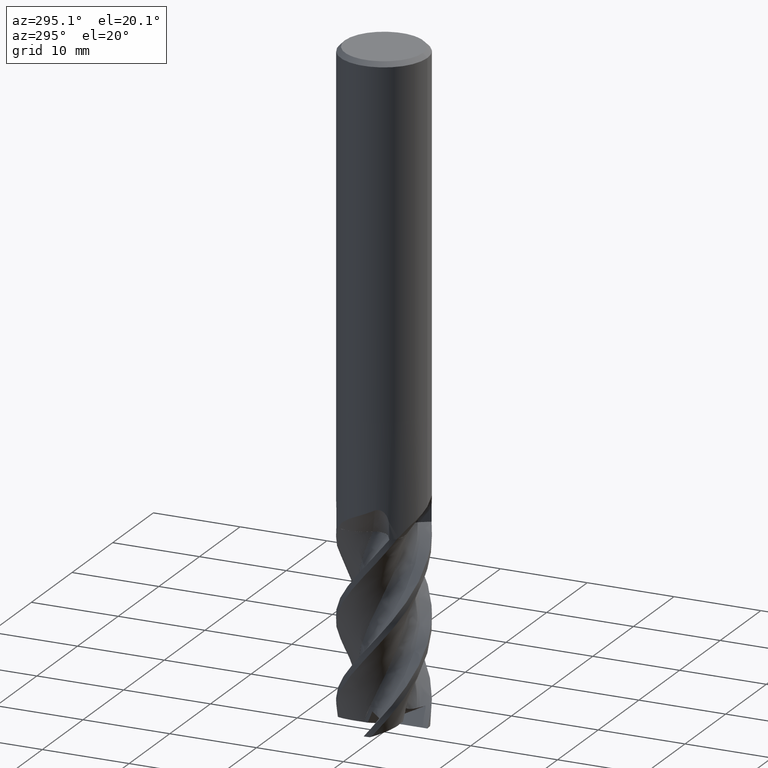
[diagram: clean part render]
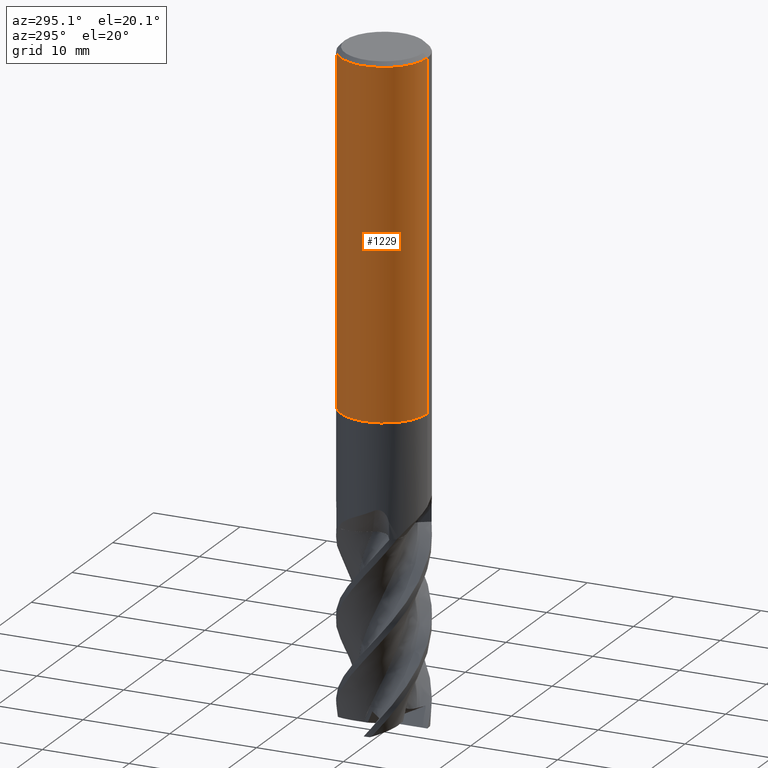
[diagram: same view with one face highlighted and labeled with its STEP entity id]
A machine part, auxiliary view. The second image highlights one B-rep face of the part: STEP entity #1229.
In plain terms, the highlighted cylindrical surface (partial cylindrical patch) has radius 5 mm, axis along (-0, -0, 1).
Its self-contained STEP definition (entity closure, byte-faithful):
#547=VERTEX_POINT('',#1537);
#561=VERTEX_POINT('',#1552);
#569=EDGE_CURVE('',#547,#561,#1560,.T.);
#573=VERTEX_POINT('',#1564);
#691=VERTEX_POINT('',#1692);
#721=VERTEX_POINT('',#1723);
#749=EDGE_CURVE('',#1273,#825,#1753,.T.);
#757=VERTEX_POINT('',#1762);
#773=EDGE_CURVE('',#1273,#573,#1779,.T.);
#825=VERTEX_POINT('',#1836);
#835=VERTEX_POINT('',#1848);
#933=VERTEX_POINT('',#1957);
#937=EDGE_CURVE('',#573,#933,#1961,.T.);
#961=VERTEX_POINT('',#1988);
#991=EDGE_CURVE('',#1001,#721,#2020,.T.);
#1001=VERTEX_POINT('',#2031);
#1003=EDGE_CURVE('',#561,#757,#2033,.T.);
#1073=EDGE_CURVE('',#757,#547,#2109,.T.);
#1139=EDGE_CURVE('',#721,#961,#2181,.T.);
#1185=EDGE_CURVE('',#691,#1001,#2231,.T.);
#1229=ADVANCED_FACE('',(#2277,#2278,#2279),#2280,.T.);
#1273=VERTEX_POINT('',#2329);
#1299=EDGE_CURVE('',#933,#825,#2356,.T.);
#1411=EDGE_CURVE('',#835,#691,#2480,.T.);
#1425=EDGE_CURVE('',#961,#835,#2494,.T.);
#1537=CARTESIAN_POINT('',(-0.0223606238740609,4.99995,-33.3681235437959));
#1552=CARTESIAN_POINT('',(-0.022360623874032,4.99995,-31.9143174982865));
#1560=LINE('',#2671,#2672);
#1564=CARTESIAN_POINT('',(6.12303176911189E-016,-5.0,-0.5));
#1692=CARTESIAN_POINT('',(-0.540415645104002,4.97070929853344,-30.7148525727368));
#1723=CARTESIAN_POINT('',(-1.15007005908306,4.86593658602336,-30.3524544749723));
#1753=CIRCLE('',#3961,5.0);
#1762=CARTESIAN_POINT('',(-1.48559931323941,4.77420094680802,-32.6357185223062));
#1779=LINE('',#3997,#3998);
#1836=CARTESIAN_POINT('',(0.0,5.0,-40.0));
#1848=CARTESIAN_POINT('',(-0.0223606238739375,4.99995,-31.13172664287));
#1957=CARTESIAN_POINT('',(0.0,5.0,-0.5));
#1961=CIRCLE('',#5179,5.0);
#1988=CARTESIAN_POINT('',(-0.0223606238741619,4.99995,-31.6638252748461));
#2020=CIRCLE('',#5713,5.0);
#2031=CARTESIAN_POINT('',(-0.624809296542345,4.9608077308997,-30.3524544749723));
#2033=ELLIPSE('',#5731,5.5746421602143,5.0);
#2109=B_SPLINE_CURVE_WITH_KNOTS('',3,(#6265,#6266,#6267,#6268,#6269,#6270,#6271,#6272,#6273,#6274,#6275,#6276,#6277,#6278,#6279,#6280),.UNSPECIFIED.,.F.,.F.,(4,2,2,2,2,2,2,4),(6.54109252178393,6.88549734634811,7.22994914101815,7.57440093568819,7.91885273035823,8.26330452502827,8.60711872297111,8.95093292091395),.UNSPECIFIED.);
#2181=B_SPLINE_CURVE_WITH_KNOTS('',3,(#7166,#7167,#7168,#7169,#7170,#7171,#7172,#7173,#7174,#7175,#7176,#7177,#7178,#7179),.UNSPECIFIED.,.F.,.F.,(4,2,2,2,2,2,4),(3.48518623586871,3.98268614979816,4.48018606372761,4.97768597765706,5.47391781680518,5.97014965595331,6.46980642683155),.UNSPECIFIED.);
#2231=B_SPLINE_CURVE_WITH_KNOTS('',3,(#7277,#7278,#7279,#7280,#7281,#7282,#7283,#7284,#7285,#7286,#7287,#7288,#7289,#7290,#7291,#7292,#7293,#7294,#7295,#7296,#7297,#7298,#7299,#7300,#7301,#7302,#7303),.UNSPECIFIED.,.F.,.F.,(4,2,3,2,2,2,2,2,2,2,2,2,4),(-0.603000499753014,-0.301500249876507,0.0,0.301500249876507,0.603000499753014,0.905281064529937,1.20756162930686,1.50852806620539,1.80949450310392,2.11084856779286,2.41220263248181,2.71355669717075,3.0149107618597),.UNSPECIFIED.);
#2277=FACE_OUTER_BOUND('',#7501,.T.);
#2278=FACE_BOUND('',#7502,.T.);
#2279=FACE_BOUND('',#7503,.T.);
#2280=CYLINDRICAL_SURFACE('',#7504,5.0);
#2329=CARTESIAN_POINT('',(6.12303176911189E-016,-5.0,-40.0));
#2356=LINE('',#7797,#7798);
#2480=B_SPLINE_CURVE_WITH_KNOTS('',3,(#9172,#9173,#9174,#9175,#9176,#9177,#9178,#9179,#9180,#9181,#9182,#9183,#9184,#9185,#9186,#9187,#9188,#9189,#9190,#9191,#9192,#9193,#9194,#9195,#9196,#9197,#9198),.UNSPECIFIED.,.F.,.F.,(4,2,3,2,2,2,2,2,2,2,2,2,4),(-0.603000499753014,-0.301500249876507,0.0,0.301500249876507,0.603000499753014,0.905281064529937,1.20756162930686,1.50852806620539,1.80949450310392,2.11084856779286,2.41220263248181,2.71355669717075,3.0149107618597),.UNSPECIFIED.);
#2494=LINE('',#9215,#9216);
#2671=CARTESIAN_POINT('',(-0.022360623874032,4.99995,-31.6841234986975));
#2672=VECTOR('',#10617,1.0);
#3961=AXIS2_PLACEMENT_3D('',#10835,#10836,#10837);
#3997=CARTESIAN_POINT('',(6.12303176911189E-016,-5.0,-20.25));
#3998=VECTOR('',#10870,1.0);
#5179=AXIS2_PLACEMENT_3D('',#11067,#11068,#11069);
#5713=AXIS2_PLACEMENT_3D('',#11143,#11144,#11145);
#5731=AXIS2_PLACEMENT_3D('',#11158,#11159,#11160);
#6265=CARTESIAN_POINT('',(-1.53222492214191,4.75944185676926,-32.5697494965023));
#6266=CARTESIAN_POINT('',(-1.46602953829672,4.78075238428633,-32.6679882363906));
#6267=CARTESIAN_POINT('',(-1.39109970116435,4.80329709406389,-32.7580874561206));
#6268=CARTESIAN_POINT('',(-1.23168862547006,4.84662422135611,-32.9175731791814));
#6269=CARTESIAN_POINT('',(-1.14158518892163,4.86897132411838,-32.9925797495797));
#6270=CARTESIAN_POINT('',(-0.945026646968974,4.91090858548794,-33.1251357845015));
#6271=CARTESIAN_POINT('',(-0.838570688681342,4.93046269590435,-33.1826953863995));
#6272=CARTESIAN_POINT('',(-0.61590226023856,4.96319731649047,-33.2754300728182));
#6273=CARTESIAN_POINT('',(-0.499494461180503,4.97638094124785,-33.3106783119967));
#6274=CARTESIAN_POINT('',(-0.264709162168673,4.99437594186088,-33.3570434159942));
#6275=CARTESIAN_POINT('',(-0.14632819076809,4.99917703876382,-33.3681466897615));
#6276=CARTESIAN_POINT('',(0.0830892500263585,5.00062300331422,-33.3681466897615));
#6277=CARTESIAN_POINT('',(0.201310993793807,4.99732781836603,-33.3570837397249));
#6278=CARTESIAN_POINT('',(0.435877527752523,4.98235107366299,-33.310827881912));
#6279=CARTESIAN_POINT('',(0.552225516433843,4.9706798792064,-33.2756478393409));
#6280=CARTESIAN_POINT('',(0.663533112758594,4.95577681178974,-33.2293444974826));
#7166=CARTESIAN_POINT('',(-1.04955253534846,4.8886030188126,-29.8584179657786));
#7167=CARTESIAN_POINT('',(-1.11682369959179,4.87416032633665,-30.0203733859967));
#7168=CARTESIAN_POINT('',(-1.15010962979076,4.86592723326835,-30.196820692817));
#7169=CARTESIAN_POINT('',(-1.15010962979076,4.86592723326835,-30.5284873021034));
#7170=CARTESIAN_POINT('',(-1.11682369959179,4.87416032633665,-30.7049346089237));
#7171=CARTESIAN_POINT('',(-0.982281371105157,4.90304571128857,-31.0288454493599));
#7172=CARTESIAN_POINT('',(-0.881055810925627,4.92317724624631,-31.176368018941));
#7173=CARTESIAN_POINT('',(-0.648047522433528,4.95922342800457,-31.409027304771));
#7174=CARTESIAN_POINT('',(-0.500628335087547,4.97751559580468,-31.5099688822119));
#7175=CARTESIAN_POINT('',(-0.177088634589299,4.99949295931905,-31.6440504938811));
#7176=CARTESIAN_POINT('',(-0.000925323496746372,5.00273523331845,-31.6771594848892));
#7177=CARTESIAN_POINT('',(0.330858065435099,4.99182056917462,-31.6771594848892));
#7178=CARTESIAN_POINT('',(0.50755156831376,4.97685501334451,-31.6436400648554));
#7179=CARTESIAN_POINT('',(0.669464692169009,4.95497901367292,-31.5762561352577));
#7277=CARTESIAN_POINT('',(0.739090223917679,4.94507286507583,-29.793059301492));
#7278=CARTESIAN_POINT('',(0.809714115490718,4.93451742347551,-29.8637778657692));
#7279=CARTESIAN_POINT('',(0.871053529322123,4.92371633214347,-29.9533606839152));
#7280=CARTESIAN_POINT('',(0.9525321460151,4.90860461891915,-30.1499499949859));
#7281=CARTESIAN_POINT('',(0.972658030198616,4.90448125251694,-30.256976356893));
#7282=CARTESIAN_POINT('',(0.972658030198616,4.90448125251694,-30.3574764401852));
#7283=CARTESIAN_POINT('',(0.972658030198616,4.90448125251694,-30.4579765234773));
#7284=CARTESIAN_POINT('',(0.9525321460151,4.90860461891915,-30.5650028853844));
#7285=CARTESIAN_POINT('',(0.871053529322123,4.92371633214347,-30.7615921964552));
#7286=CARTESIAN_POINT('',(0.809714115490719,4.93451742347551,-30.8511750146011));
#7287=CARTESIAN_POINT('',(0.668283550158084,4.95565562528821,-30.9927951703653));
#7288=CARTESIAN_POINT('',(0.57860485054302,4.96739281956991,-31.0543047454339));
#7289=CARTESIAN_POINT('',(0.381781703919566,4.98638323105567,-31.1360227915518));
#7290=CARTESIAN_POINT('',(0.274615689105447,4.9934696192963,-31.156217997343));
#7291=CARTESIAN_POINT('',(0.0736550345331755,5.00046392535656,-31.156217997343));
#7292=CARTESIAN_POINT('',(-0.0333084125996869,5.00085705242446,-31.1361796240269));
#7293=CARTESIAN_POINT('',(-0.230021364744812,4.99567521773621,-31.0547246193692));
#7294=CARTESIAN_POINT('',(-0.319777384248839,4.99026997289342,-30.9933130123696));
#7295=CARTESIAN_POINT('',(-0.461588668494992,4.9791566455235,-30.8516230263792));
#7296=CARTESIAN_POINT('',(-0.523099346955725,4.97273104303287,-30.7618392087191));
#7297=CARTESIAN_POINT('',(-0.604720484215197,4.96346654097369,-30.5649969787532));
#7298=CARTESIAN_POINT('',(-0.624825084116949,4.96080574244328,-30.4579277950815));
#7299=CARTESIAN_POINT('',(-0.624825084116949,4.96080574244328,-30.2570250852889));
#7300=CARTESIAN_POINT('',(-0.604720484215199,4.96346654097369,-30.1499559016171));
#7301=CARTESIAN_POINT('',(-0.523099346955731,4.97273104303287,-29.9531136716512));
#7302=CARTESIAN_POINT('',(-0.461588668494991,4.9791566455235,-29.8633298539912));
#7303=CARTESIAN_POINT('',(-0.390637394524234,4.98471688524026,-29.7924392681795));
#7501=EDGE_LOOP('',(#11403,#11404,#11405,#11406));
#7502=EDGE_LOOP('',(#11407,#11408,#11409));
#7503=EDGE_LOOP('',(#11410,#11411,#11412,#11413,#11414));
#7504=AXIS2_PLACEMENT_3D('',#11415,#11416,#11417);
#7797=CARTESIAN_POINT('',(-6.12303176911189E-016,5.0,-20.25));
#7798=VECTOR('',#11497,1.0);
#9172=CARTESIAN_POINT('',(0.739090223917679,4.94507286507583,-29.793059301492));
#9173=CARTESIAN_POINT('',(0.809714115490718,4.93451742347551,-29.8637778657692));
#9174=CARTESIAN_POINT('',(0.871053529322123,4.92371633214347,-29.9533606839152));
#9175=CARTESIAN_POINT('',(0.9525321460151,4.90860461891915,-30.1499499949859));
#9176=CARTESIAN_POINT('',(0.972658030198616,4.90448125251694,-30.256976356893));
#9177=CARTESIAN_POINT('',(0.972658030198616,4.90448125251694,-30.3574764401852));
#9178=CARTESIAN_POINT('',(0.972658030198616,4.90448125251694,-30.4579765234773));
#9179=CARTESIAN_POINT('',(0.9525321460151,4.90860461891915,-30.5650028853844));
#9180=CARTESIAN_POINT('',(0.871053529322123,4.92371633214347,-30.7615921964552));
#9181=CARTESIAN_POINT('',(0.809714115490719,4.93451742347551,-30.8511750146011));
#9182=CARTESIAN_POINT('',(0.668283550158084,4.95565562528821,-30.9927951703653));
#9183=CARTESIAN_POINT('',(0.57860485054302,4.96739281956991,-31.0543047454339));
#9184=CARTESIAN_POINT('',(0.381781703919566,4.98638323105567,-31.1360227915518));
#9185=CARTESIAN_POINT('',(0.274615689105447,4.9934696192963,-31.156217997343));
#9186=CARTESIAN_POINT('',(0.0736550345331755,5.00046392535656,-31.156217997343));
#9187=CARTESIAN_POINT('',(-0.0333084125996869,5.00085705242446,-31.1361796240269));
#9188=CARTESIAN_POINT('',(-0.230021364744812,4.99567521773621,-31.0547246193692));
#9189=CARTESIAN_POINT('',(-0.319777384248839,4.99026997289342,-30.9933130123696));
#9190=CARTESIAN_POINT('',(-0.461588668494992,4.9791566455235,-30.8516230263792));
#9191=CARTESIAN_POINT('',(-0.523099346955725,4.97273104303287,-30.7618392087191));
#9192=CARTESIAN_POINT('',(-0.604720484215197,4.96346654097369,-30.5649969787532));
#9193=CARTESIAN_POINT('',(-0.624825084116949,4.96080574244328,-30.4579277950815));
#9194=CARTESIAN_POINT('',(-0.624825084116949,4.96080574244328,-30.2570250852889));
#9195=CARTESIAN_POINT('',(-0.604720484215199,4.96346654097369,-30.1499559016171));
#9196=CARTESIAN_POINT('',(-0.523099346955731,4.97273104303287,-29.9531136716512));
#9197=CARTESIAN_POINT('',(-0.461588668494991,4.9791566455235,-29.8633298539912));
#9198=CARTESIAN_POINT('',(-0.390637394524234,4.98471688524026,-29.7924392681795));
#9215=CARTESIAN_POINT('',(-0.022360623874032,4.99995,-31.6841234986975));
#9216=VECTOR('',#11651,1.0);
#10617=DIRECTION('',(-0.0,-0.0,1.0));
#10835=CARTESIAN_POINT('',(0.0,0.0,-40.0));
#10836=DIRECTION('',(0.0,0.0,-1.0));
#10837=DIRECTION('',(0.0,1.0,0.0));
#10870=DIRECTION('',(-0.0,-0.0,1.0));
#11067=CARTESIAN_POINT('',(0.0,0.0,-0.5));
#11068=DIRECTION('',(0.0,0.0,-1.0));
#11069=DIRECTION('',(0.0,1.0,0.0));
#11143=CARTESIAN_POINT('',(0.0,0.0,-30.3524544749723));
#11144=DIRECTION('',(0.0,-0.0,1.0));
#11145=DIRECTION('',(0.0,1.0,0.0));
#11158=CARTESIAN_POINT('',(0.0,0.0,-31.9032933386072));
#11159=DIRECTION('',(-0.442195774284071,0.0,0.896918556617774));
#11160=DIRECTION('',(0.896918556617774,-0.0,0.442195774284071));
#11403=ORIENTED_EDGE('',*,*,#1299,.T.);
#11404=ORIENTED_EDGE('',*,*,#749,.F.);
#11405=ORIENTED_EDGE('',*,*,#773,.T.);
#11406=ORIENTED_EDGE('',*,*,#937,.T.);
#11407=ORIENTED_EDGE('',*,*,#1073,.T.);
#11408=ORIENTED_EDGE('',*,*,#569,.T.);
#11409=ORIENTED_EDGE('',*,*,#1003,.T.);
#11410=ORIENTED_EDGE('',*,*,#1411,.T.);
#11411=ORIENTED_EDGE('',*,*,#1185,.T.);
#11412=ORIENTED_EDGE('',*,*,#991,.T.);
#11413=ORIENTED_EDGE('',*,*,#1139,.T.);
#11414=ORIENTED_EDGE('',*,*,#1425,.T.);
#11415=CARTESIAN_POINT('',(0.0,0.0,-20.25));
#11416=DIRECTION('',(-0.0,-0.0,1.0));
#11417=DIRECTION('',(0.0,1.0,0.0));
#11497=DIRECTION('',(0.0,0.0,-1.0));
#11651=DIRECTION('',(-0.0,-0.0,1.0));